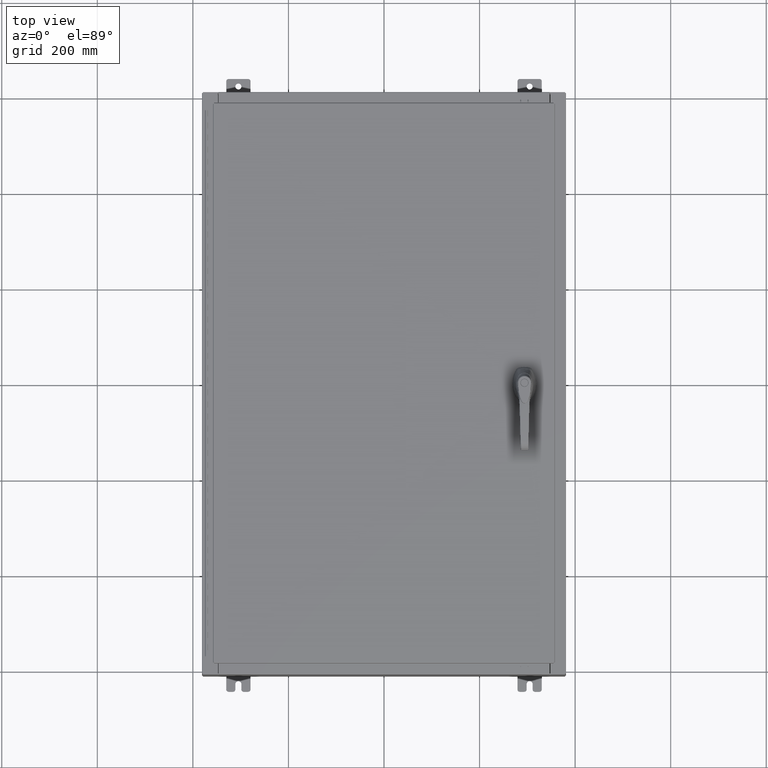
[diagram: clean part render]
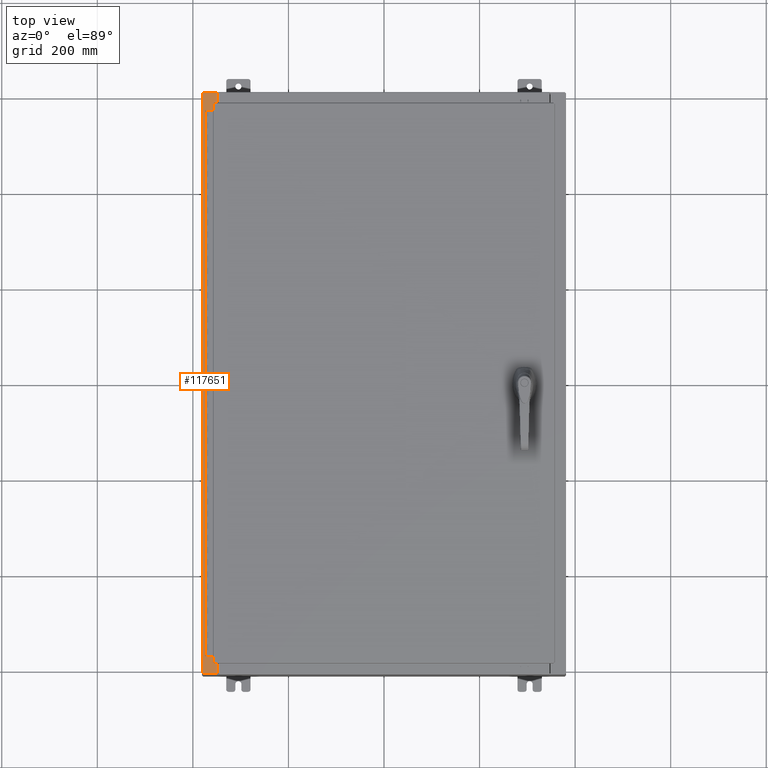
[diagram: same view with one face highlighted and labeled with its STEP entity id]
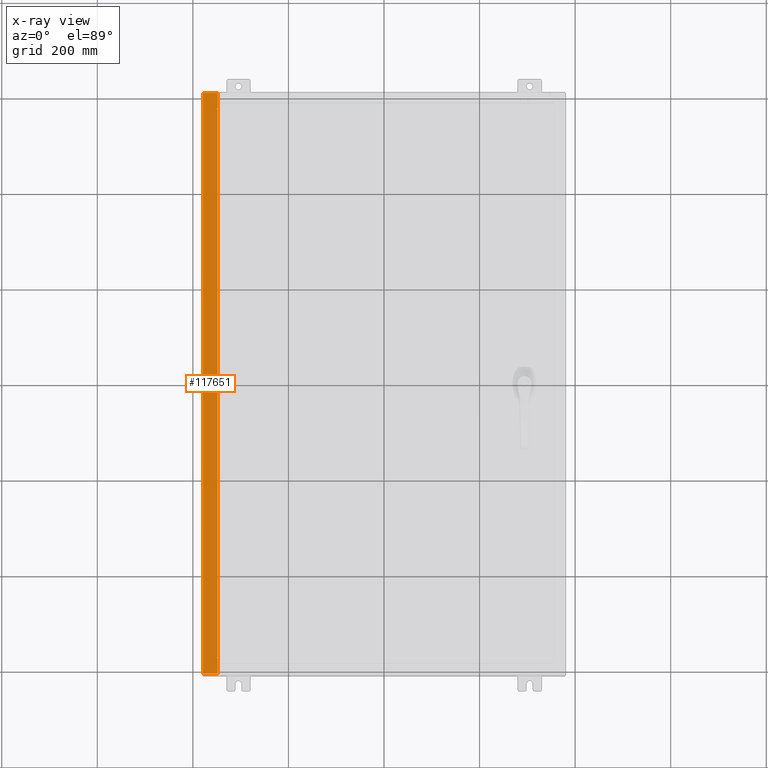
[diagram: x-ray of the same camera — body ghosted, the highlighted face saturated]
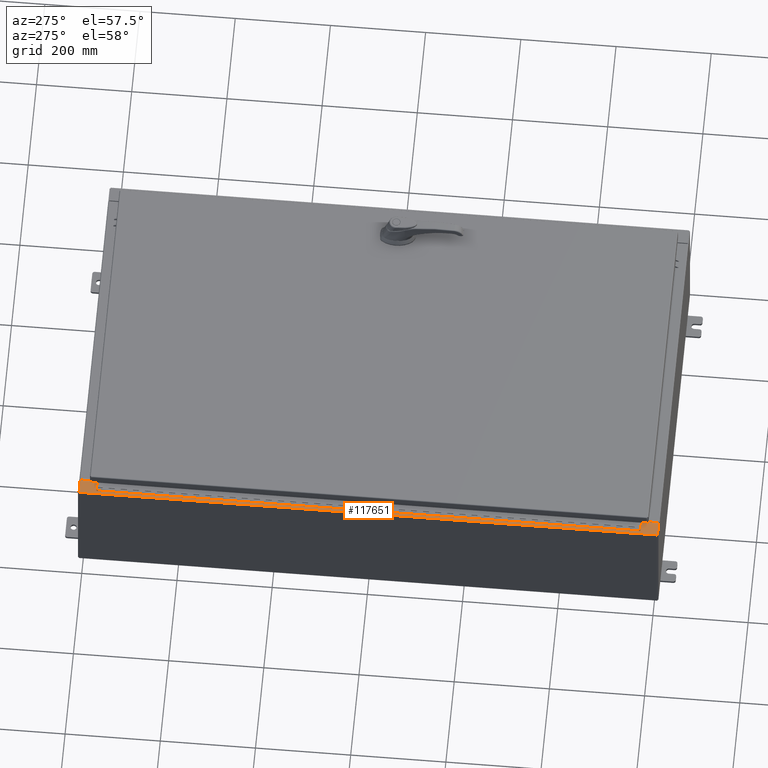
[diagram: same view with one face highlighted and labeled with its STEP entity id]
A machine part, top view. The second image highlights one B-rep face of the part: STEP entity #117651.
The next image is the same camera in x-ray: the body ghosted, the highlighted face saturated — about 0% of this face is hidden behind the body in this view.
A second angle (auxiliary view) of the same face is appended — the face is thin or edge-on in the first view.
In plain terms, the highlighted planar face has unit normal (0, -0, -1).
Its self-contained STEP definition (entity closure, byte-faithful):
#1635 = CARTESIAN_POINT ( 'NONE',  ( -7.105562016127585500E-014, 4.533177998439511200E-016, 9.925300000000104800 ) ) ;
#5104 = LINE ( 'NONE', #17861, #101695 ) ;
#7166 = DIRECTION ( 'NONE',  ( 1.000000000000000000, 0.0000000000000000000, 0.0000000000000000000 ) ) ;
#7554 = ORIENTED_EDGE ( 'NONE', *, *, #130301, .F. ) ;
#7948 = LINE ( 'NONE', #119698, #59418 ) ;
#8011 = EDGE_CURVE ( 'NONE', #61415, #52539, #117138, .T. ) ;
#8972 = CARTESIAN_POINT ( 'NONE',  ( -14.91230000000003700, 23.92529999999999600, 9.925299999999998200 ) ) ;
#9411 = CARTESIAN_POINT ( 'NONE',  ( -13.71270000000003900, -22.59374999999997500, 9.925300000000008900 ) ) ;
#9560 = CARTESIAN_POINT ( 'NONE',  ( -13.75005000000003700, 22.59375000000000000, 9.925300000000008900 ) ) ;
#12476 = ORIENTED_EDGE ( 'NONE', *, *, #67356, .T. ) ;
#13140 = EDGE_CURVE ( 'NONE', #104753, #129809, #86316, .T. ) ;
#16637 = VECTOR ( 'NONE', #38234, 39.37007874015748100 ) ;
#17861 = CARTESIAN_POINT ( 'NONE',  ( -13.75005000000003700, -22.63109999999997500, 9.925300000000008900 ) ) ;
#19842 = LINE ( 'NONE', #27883, #16637 ) ;
#19867 = DIRECTION ( 'NONE',  ( 1.000000000000000000, 0.0000000000000000000, 0.0000000000000000000 ) ) ;
#22267 = PLANE ( 'NONE',  #109647 ) ;
#22754 = EDGE_CURVE ( 'NONE', #65056, #132816, #43197, .T. ) ;
#24070 = VERTEX_POINT ( 'NONE', #94625 ) ;
#26150 = LINE ( 'NONE', #46691, #132363 ) ;
#26431 = CARTESIAN_POINT ( 'NONE',  ( -13.69970000000003900, -22.63109999999998200, 9.925300000000007100 ) ) ;
#27427 = CARTESIAN_POINT ( 'NONE',  ( -13.69970000000003900, 4.533177998439465900E-016, 9.925300000000007100 ) ) ;
#27883 = CARTESIAN_POINT ( 'NONE',  ( -13.69970000000003900, 4.533177998439465900E-016, 9.925300000000007100 ) ) ;
#29594 = LINE ( 'NONE', #54412, #105349 ) ;
#33515 = CARTESIAN_POINT ( 'NONE',  ( -13.75005000000003700, -22.59374999999997500, 9.925300000000008900 ) ) ;
#34409 = ORIENTED_EDGE ( 'NONE', *, *, #74444, .T. ) ;
#37381 = DIRECTION ( 'NONE',  ( -0.0000000000000000000, -1.000000000000000000, -0.0000000000000000000 ) ) ;
#38234 = DIRECTION ( 'NONE',  ( 0.0000000000000000000, 1.000000000000000000, -4.567295697298281900E-017 ) ) ;
#38870 = VECTOR ( 'NONE', #132142, 39.37007874015748100 ) ;
#41454 = CARTESIAN_POINT ( 'NONE',  ( -13.71270000000003900, 22.59375000000000000, 9.925300000000008900 ) ) ;
#42078 = LINE ( 'NONE', #8972, #38870 ) ;
#42467 = EDGE_LOOP ( 'NONE', ( #44160, #61239, #34409, #102920, #12476, #92246, #73419, #125334, #118530, #7554, #112498, #114482 ) ) ;
#42916 = DIRECTION ( 'NONE',  ( 7.132762385546384700E-015, -4.567295697298280600E-017, -1.000000000000000000 ) ) ;
#43197 = CIRCLE ( 'NONE', #52943, 0.01867499999999949400 ) ;
#44160 = ORIENTED_EDGE ( 'NONE', *, *, #88590, .F. ) ;
#45459 = CARTESIAN_POINT ( 'NONE',  ( -14.91230000000003900, -23.92529999999998200, 9.925299999999998200 ) ) ;
#46691 = CARTESIAN_POINT ( 'NONE',  ( -13.69970000000003900, 22.63110000000000400, 9.925300000000007100 ) ) ;
#47279 = CARTESIAN_POINT ( 'NONE',  ( -13.69970000000003900, -23.92529999999998200, 9.925300000000007100 ) ) ;
#52539 = VERTEX_POINT ( 'NONE', #55819 ) ;
#52549 = VERTEX_POINT ( 'NONE', #45459 ) ;
#52943 = AXIS2_PLACEMENT_3D ( 'NONE', #118447, #56776, #128753 ) ;
#54412 = CARTESIAN_POINT ( 'NONE',  ( -7.105562016127584200E-014, 23.92529999999999600, 9.925300000000103000 ) ) ;
#54478 = EDGE_CURVE ( 'NONE', #52549, #101141, #42078, .T. ) ;
#55819 = CARTESIAN_POINT ( 'NONE',  ( -13.69970000000003900, 23.92529999999999600, 9.925300000000005300 ) ) ;
#56776 = DIRECTION ( 'NONE',  ( -7.132762385546384700E-015, 4.567295697298281300E-017, 1.000000000000000000 ) ) ;
#58876 = VECTOR ( 'NONE', #112435, 39.37007874015748100 ) ;
#59418 = VECTOR ( 'NONE', #37381, 39.37007874015748100 ) ;
#59566 = CARTESIAN_POINT ( 'NONE',  ( -7.105562016127586800E-014, -23.92529999999998200, 9.925300000000104800 ) ) ;
#61239 = ORIENTED_EDGE ( 'NONE', *, *, #8011, .T. ) ;
#61415 = VERTEX_POINT ( 'NONE', #97826 ) ;
#63494 = CARTESIAN_POINT ( 'NONE',  ( -14.91230000000003900, 23.92529999999999600, 9.925299999999998200 ) ) ;
#65056 = VERTEX_POINT ( 'NONE', #131997 ) ;
#67268 = VECTOR ( 'NONE', #19867, 39.37007874015748100 ) ;
#67356 = EDGE_CURVE ( 'NONE', #52549, #94338, #117652, .T. ) ;
#68807 = DIRECTION ( 'NONE',  ( -7.132762385546384700E-015, 4.567295697298281300E-017, 1.000000000000000000 ) ) ;
#73020 = CIRCLE ( 'NONE', #77123, 0.01867499999999949400 ) ;
#73419 = ORIENTED_EDGE ( 'NONE', *, *, #123612, .F. ) ;
#74444 = EDGE_CURVE ( 'NONE', #52539, #101141, #29594, .T. ) ;
#77123 = AXIS2_PLACEMENT_3D ( 'NONE', #130325, #68807, #7166 ) ;
#80695 = VECTOR ( 'NONE', #121202, 39.37007874015748100 ) ;
#82313 = CARTESIAN_POINT ( 'NONE',  ( -13.75005000000003700, 22.59375000000000000, 9.925300000000007100 ) ) ;
#82758 = EDGE_CURVE ( 'NONE', #132816, #87537, #101154, .T. ) ;
#86316 = LINE ( 'NONE', #9411, #58876 ) ;
#87537 = VERTEX_POINT ( 'NONE', #41454 ) ;
#87734 = DIRECTION ( 'NONE',  ( -1.000000000000000000, -8.681145560800197900E-014, 4.340572780400098900E-014 ) ) ;
#87872 = EDGE_CURVE ( 'NONE', #94338, #119777, #19842, .T. ) ;
#88590 = EDGE_CURVE ( 'NONE', #61415, #65056, #26150, .T. ) ;
#89811 = VECTOR ( 'NONE', #118609, 39.37007874015748100 ) ;
#92246 = ORIENTED_EDGE ( 'NONE', *, *, #87872, .T. ) ;
#94338 = VERTEX_POINT ( 'NONE', #47279 ) ;
#94625 = CARTESIAN_POINT ( 'NONE',  ( -13.75005000000003700, -22.63109999999997500, 9.925300000000007100 ) ) ;
#95411 = DIRECTION ( 'NONE',  ( -1.000000000000000000, 4.379057701015053300E-047, -7.132762385546384700E-015 ) ) ;
#97826 = CARTESIAN_POINT ( 'NONE',  ( -13.69970000000003900, 22.63110000000000400, 9.925300000000007100 ) ) ;
#99913 = FACE_OUTER_BOUND ( 'NONE', #42467, .T. ) ;
#100240 = DIRECTION ( 'NONE',  ( 1.000000000000000000, -8.681145560800197900E-014, -4.340572780400098900E-014 ) ) ;
#101141 = VERTEX_POINT ( 'NONE', #63494 ) ;
#101154 = LINE ( 'NONE', #9560, #67268 ) ;
#101695 = VECTOR ( 'NONE', #100240, 39.37007874015748100 ) ;
#102920 = ORIENTED_EDGE ( 'NONE', *, *, #54478, .F. ) ;
#104753 = VERTEX_POINT ( 'NONE', #106827 ) ;
#105349 = VECTOR ( 'NONE', #95411, 39.37007874015748100 ) ;
#106827 = CARTESIAN_POINT ( 'NONE',  ( -13.71270000000003900, -22.59374999999997500, 9.925300000000008900 ) ) ;
#109647 = AXIS2_PLACEMENT_3D ( 'NONE', #1635, #42916, #114957 ) ;
#112435 = DIRECTION ( 'NONE',  ( -1.000000000000000000, 0.0000000000000000000, 0.0000000000000000000 ) ) ;
#112498 = ORIENTED_EDGE ( 'NONE', *, *, #82758, .F. ) ;
#114482 = ORIENTED_EDGE ( 'NONE', *, *, #22754, .F. ) ;
#114957 = DIRECTION ( 'NONE',  ( -1.000000000000000000, 0.0000000000000000000, -7.132762385546384700E-015 ) ) ;
#117138 = LINE ( 'NONE', #27427, #89811 ) ;
#117651 = ADVANCED_FACE ( 'NONE', ( #99913 ), #22267, .F. ) ;
#117652 = LINE ( 'NONE', #59566, #80695 ) ;
#118447 = CARTESIAN_POINT ( 'NONE',  ( -13.75005000000003700, 22.61242500000000200, 9.925300000000008900 ) ) ;
#118530 = ORIENTED_EDGE ( 'NONE', *, *, #13140, .F. ) ;
#118609 = DIRECTION ( 'NONE',  ( 0.0000000000000000000, 1.000000000000000000, -4.567295697298281900E-017 ) ) ;
#119698 = CARTESIAN_POINT ( 'NONE',  ( -13.71270000000003900, 22.59375000000000000, 9.925300000000008900 ) ) ;
#119777 = VERTEX_POINT ( 'NONE', #26431 ) ;
#121202 = DIRECTION ( 'NONE',  ( 1.000000000000000000, -4.379057701015053300E-047, 7.132762385546384700E-015 ) ) ;
#121712 = EDGE_CURVE ( 'NONE', #129809, #24070, #73020, .T. ) ;
#123612 = EDGE_CURVE ( 'NONE', #24070, #119777, #5104, .T. ) ;
#125334 = ORIENTED_EDGE ( 'NONE', *, *, #121712, .F. ) ;
#128753 = DIRECTION ( 'NONE',  ( 1.000000000000000000, 0.0000000000000000000, 0.0000000000000000000 ) ) ;
#129809 = VERTEX_POINT ( 'NONE', #33515 ) ;
#130301 = EDGE_CURVE ( 'NONE', #87537, #104753, #7948, .T. ) ;
#130325 = CARTESIAN_POINT ( 'NONE',  ( -13.75005000000003700, -22.61242499999997300, 9.925300000000008900 ) ) ;
#131997 = CARTESIAN_POINT ( 'NONE',  ( -13.75005000000003700, 22.63110000000000000, 9.925300000000007100 ) ) ;
#132142 = DIRECTION ( 'NONE',  ( 4.567295697298285000E-017, 1.000000000000000000, -4.567295697298248600E-017 ) ) ;
#132363 = VECTOR ( 'NONE', #87734, 39.37007874015748100 ) ;
#132816 = VERTEX_POINT ( 'NONE', #82313 ) ;